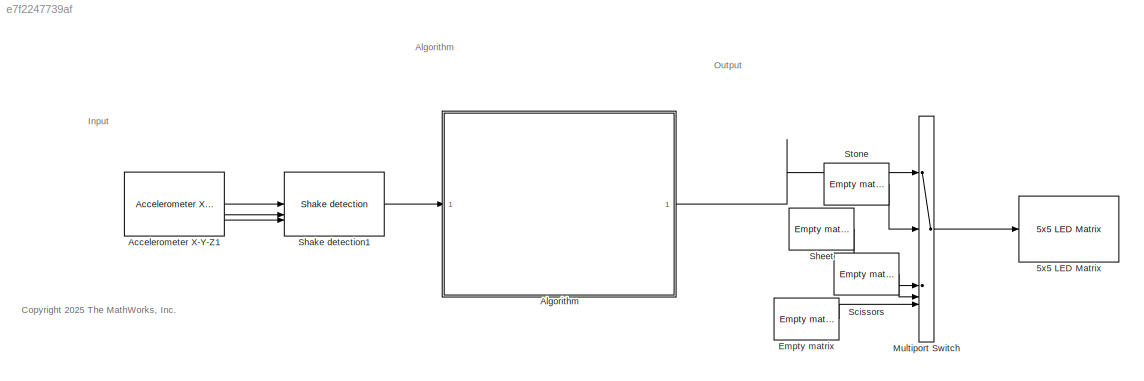
MODEL slx_e7f2247739af
KIND model
CONFIG AbsTol = auto
CONFIG EnableMultiTasking = off
CONFIG FixedStep = auto
CONFIG MaxStep = auto
CONFIG MinStep = auto
CONFIG RelTol = 1e-3
CONFIG SampleTimeConstraint = Unconstrained
CONFIG SolverName = FixedStepAuto
CONFIG StartTime = 0.0
CONFIG StopTime = inf
BLOCK [Reference] 5x5 LED Matrix  REF=microbitledlib/5x5 LED Matrix
  SourceBlock = microbitledlib/5x5 LED Matrix
  SourceType = BBC micro:bit 5x5 LED Matrix
BLOCK [Reference] Accelerometer X-Y-Z1  REF=microbitaccellib/Accelerometer X-Y-Z
  SourceBlock = microbitaccellib/Accelerometer X-Y-Z
  SourceType = BBC micro:bit Accelerometer X-Y-Z
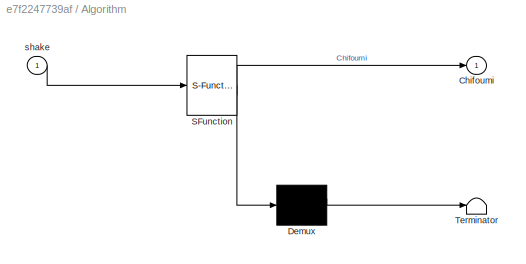
BLOCK [SubSystem] Algorithm
  ErrorFcn = Stateflow.Translate.translate
  PermitHierarchicalResolution = ExplicitOnly
  SFBlockType = Chart
  TreatAsAtomicUnit = on
BLOCK [Demux] Algorithm/ Demux 
  Outputs = 1
BLOCK [S-Function] Algorithm/ SFunction 
  EnableBusSupport = off
  FunctionName = sf_sfun
  PortCounts = [1 2]
  SFcnIsStateOwnerBlock = off
  SFunctionDeploymentMode = off
  Tag = Stateflow S-Function 3
BLOCK [Terminator] Algorithm/ Terminator 
BLOCK [Outport] Algorithm/Chifoumi
  VectorParamsAs1DForOutWhenUnconnected = off
BLOCK [Inport] Algorithm/shake
BLOCK [Reference] Empty matrix  REF=microbitledlib/LED Images/Empty matrix
  SourceBlock = microbitledlib/LED Images/Empty matrix
  SourceType = Output a 5x5 Matrix
BLOCK [MultiPortSwitch] Multiport Switch
  InputSameDT = off
  Inputs = 4
  SaturateOnIntegerOverflow = off
BLOCK [Reference] Scissors  REF=microbitledlib/LED Images/Empty matrix
  SourceBlock = microbitledlib/LED Images/Empty matrix
  SourceType = Output a 5x5 Matrix
BLOCK [Reference] Shake detection1  REF=microbitaccellib/Shake detection
  SourceBlock = microbitaccellib/Shake detection
  SourceType = BBC micro:bit Accelerometer Shake detection
BLOCK [Reference] Sheet  REF=microbitledlib/LED Images/Empty matrix
  SourceBlock = microbitledlib/LED Images/Empty matrix
  SourceType = Output a 5x5 Matrix
BLOCK [Reference] Stone  REF=microbitledlib/LED Images/Empty matrix
  SourceBlock = microbitledlib/LED Images/Empty matrix
  SourceType = Output a 5x5 Matrix
ANNOTATION (root): <copyright redacted>
ANNOTATION (root): Algorithm
ANNOTATION (root): Input
ANNOTATION (root): Output
LINE Accelerometer X-Y-Z1:1 -> Shake detection1:1
LINE Accelerometer X-Y-Z1:2 -> Shake detection1:2
LINE Accelerometer X-Y-Z1:3 -> Shake detection1:3
LINE Algorithm:1 -> Multiport Switch:1
LINE Empty matrix:1 -> Multiport Switch:5
LINE Multiport Switch:1 -> 5x5 LED Matrix:1
LINE Scissors:1 -> Multiport Switch:4
LINE Shake detection1:1 -> Algorithm:1
LINE Sheet:1 -> Multiport Switch:3
LINE Stone:1 -> Multiport Switch:2
CHART Algorithm states=2 transitions=3
  STATE_LABEL 'Start\nChifoumi=0;'
  STATE_LABEL 'Play\nentry: Chifoumi=randi(3);'
CHART  states=0 transitions=0
